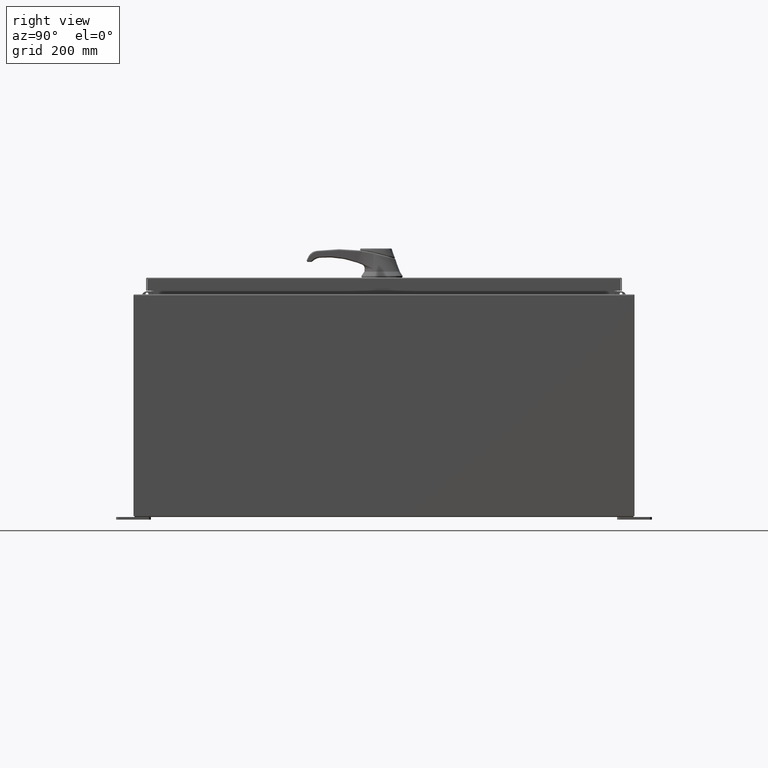
[diagram: clean part render]
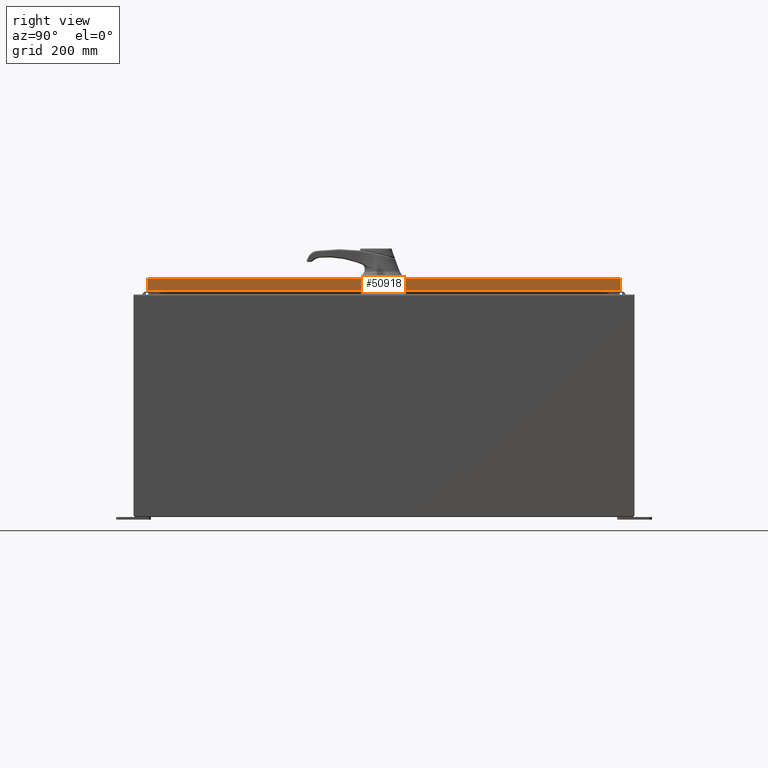
[diagram: same view with one face highlighted and labeled with its STEP entity id]
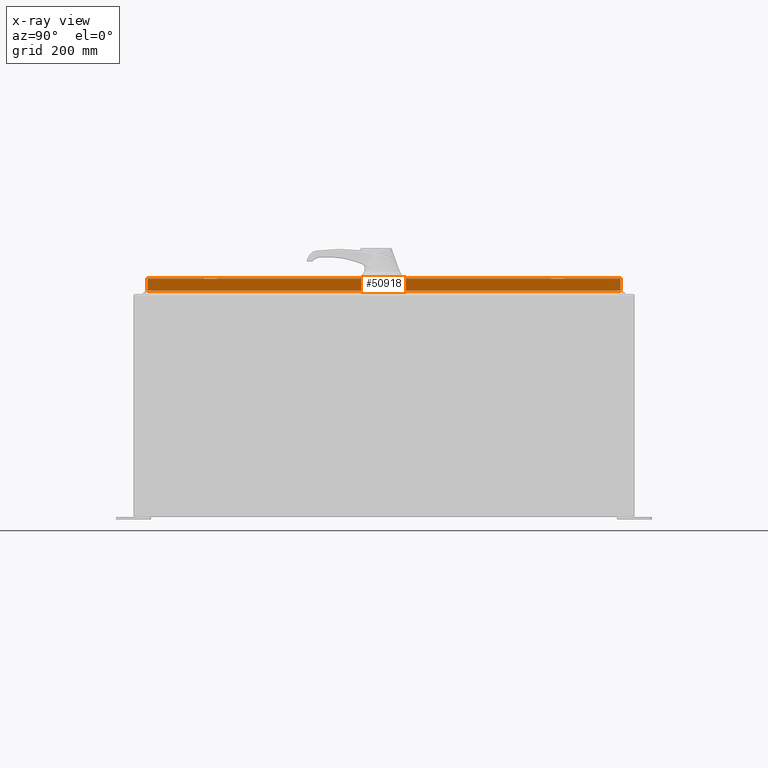
[diagram: x-ray of the same camera — body ghosted, the highlighted face saturated]
A machine part, right view. The second image highlights one B-rep face of the part: STEP entity #50918.
The next image is the same camera in x-ray: the body ghosted, the highlighted face saturated — about 0% of this face is hidden behind the body in this view.
In plain terms, the highlighted planar face has unit normal (1, 0, 0).
Its self-contained STEP definition (entity closure, byte-faithful):
#340 = CARTESIAN_POINT ( 'NONE',  ( 14.07799999999999400, -17.00515786437626900, -0.08770000000000008300 ) ) ;
#6945 = PLANE ( 'NONE',  #36452 ) ;
#12807 = DIRECTION ( 'NONE',  ( 0.0000000000000000000, -1.000000000000000000, 0.0000000000000000000 ) ) ;
#16461 = CARTESIAN_POINT ( 'NONE',  ( 14.07799999999999400, 0.0000000000000000000, 3.591222135455663800E-014 ) ) ;
#18741 = VECTOR ( 'NONE', #36617, 39.37007874015748100 ) ;
#23700 = DIRECTION ( 'NONE',  ( -2.532419924601866100E-015, -6.982962677686265900E-015, 1.000000000000000000 ) ) ;
#25977 = DIRECTION ( 'NONE',  ( 1.000000000000000000, 0.0000000000000000000, 2.532419924601866100E-015 ) ) ;
#36452 = AXIS2_PLACEMENT_3D ( 'NONE', #16461, #25977, #92333 ) ;
#36617 = DIRECTION ( 'NONE',  ( -2.532419924601866100E-015, -6.982962677686265900E-015, 1.000000000000000000 ) ) ;
#36650 = VERTEX_POINT ( 'NONE', #82358 ) ;
#40000 = DIRECTION ( 'NONE',  ( 0.0000000000000000000, -1.000000000000000000, 0.0000000000000000000 ) ) ;
#42717 = CARTESIAN_POINT ( 'NONE',  ( 14.07799999999999400, -17.00515786437626900, -0.07469999999999980800 ) ) ;
#49826 = ORIENTED_EDGE ( 'NONE', *, *, #91210, .F. ) ;
#50622 = EDGE_CURVE ( 'NONE', #82379, #57511, #72019, .T. ) ;
#50918 = ADVANCED_FACE ( 'NONE', ( #121074 ), #6945, .T. ) ;
#55222 = CARTESIAN_POINT ( 'NONE',  ( 14.07799999999999400, 17.00515786437627200, 1.546586040496592500E-013 ) ) ;
#57511 = VERTEX_POINT ( 'NONE', #340 ) ;
#59815 = ORIENTED_EDGE ( 'NONE', *, *, #71384, .F. ) ;
#60008 = CARTESIAN_POINT ( 'NONE',  ( 14.07799999999999400, 0.0000000000000000000, -0.08770000000000008300 ) ) ;
#62248 = VERTEX_POINT ( 'NONE', #104771 ) ;
#70939 = EDGE_LOOP ( 'NONE', ( #59815, #49826, #89346, #101345 ) ) ;
#71384 = EDGE_CURVE ( 'NONE', #36650, #57511, #92345, .T. ) ;
#72019 = LINE ( 'NONE', #60008, #119654 ) ;
#74632 = EDGE_CURVE ( 'NONE', #62248, #82379, #94407, .T. ) ;
#82358 = CARTESIAN_POINT ( 'NONE',  ( 14.07799999999999600, -17.00515786437626200, -0.9376999999999997600 ) ) ;
#82379 = VERTEX_POINT ( 'NONE', #98491 ) ;
#89346 = ORIENTED_EDGE ( 'NONE', *, *, #74632, .T. ) ;
#89375 = VECTOR ( 'NONE', #23700, 39.37007874015748100 ) ;
#91210 = EDGE_CURVE ( 'NONE', #62248, #36650, #99190, .T. ) ;
#92333 = DIRECTION ( 'NONE',  ( 2.532419924601866100E-015, 0.0000000000000000000, -1.000000000000000000 ) ) ;
#92345 = LINE ( 'NONE', #42717, #89375 ) ;
#94407 = LINE ( 'NONE', #55222, #18741 ) ;
#98491 = CARTESIAN_POINT ( 'NONE',  ( 14.07799999999999400, 17.00515786437626900, -0.08770000000000008300 ) ) ;
#99190 = LINE ( 'NONE', #116012, #115564 ) ;
#101345 = ORIENTED_EDGE ( 'NONE', *, *, #50622, .T. ) ;
#104771 = CARTESIAN_POINT ( 'NONE',  ( 14.07799999999999600, 17.00515786437627600, -0.9376999999999997600 ) ) ;
#115564 = VECTOR ( 'NONE', #40000, 39.37007874015748100 ) ;
#116012 = CARTESIAN_POINT ( 'NONE',  ( 14.07799999999999600, -17.09400000000000100, -0.9376999999999997600 ) ) ;
#119654 = VECTOR ( 'NONE', #12807, 39.37007874015748100 ) ;
#121074 = FACE_OUTER_BOUND ( 'NONE', #70939, .T. ) ;